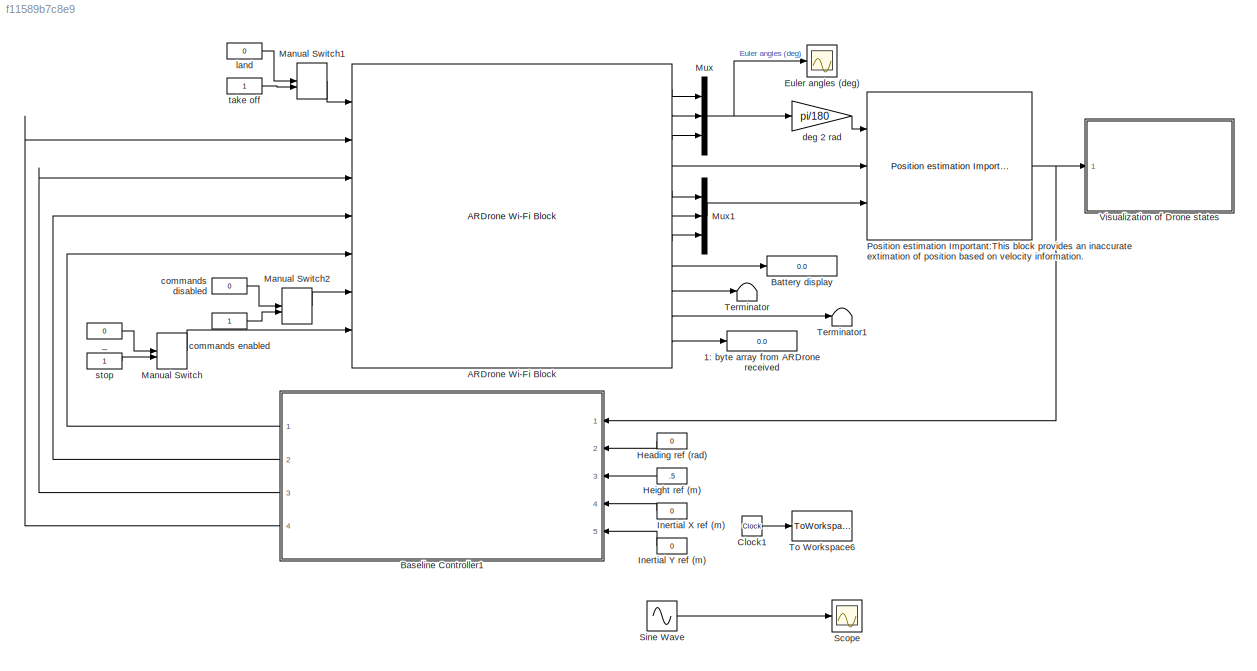
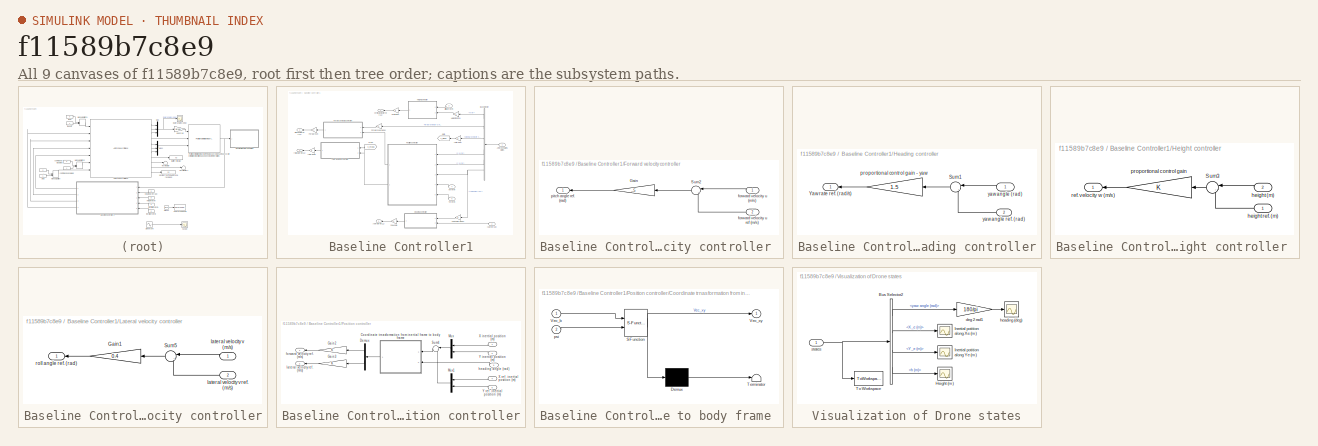
[diagram: thumbnail index - all 9 canvases of the model, root first then tree order]
MODEL slx_f11589b7c8e9
KIND model
CONFIG AbsTol = auto
CONFIG FixedStep = sampleTime
CONFIG MaxStep = auto
CONFIG MinStep = auto
CONFIG RelTol = 1e-3
CONFIG SampleTimeConstraint = Unconstrained
CONFIG Solver = ode1
CONFIG SolverMode = Auto
CONFIG SolverName = ode1
CONFIG StartTime = 0.0
CONFIG StopTime = inf
BLOCK [Display] 1: byte array from ARDrone received 
  Decimation = 1
  Ports = [1]
BLOCK [Reference] ARDrone Wi-Fi  Block  REF=ARBlocks/ARDrone Wi-Fi  Block
  Ports = [7, 11]
  SourceBlock = ARBlocks/ARDrone Wi-Fi  Block
  SourceType = SubSystem
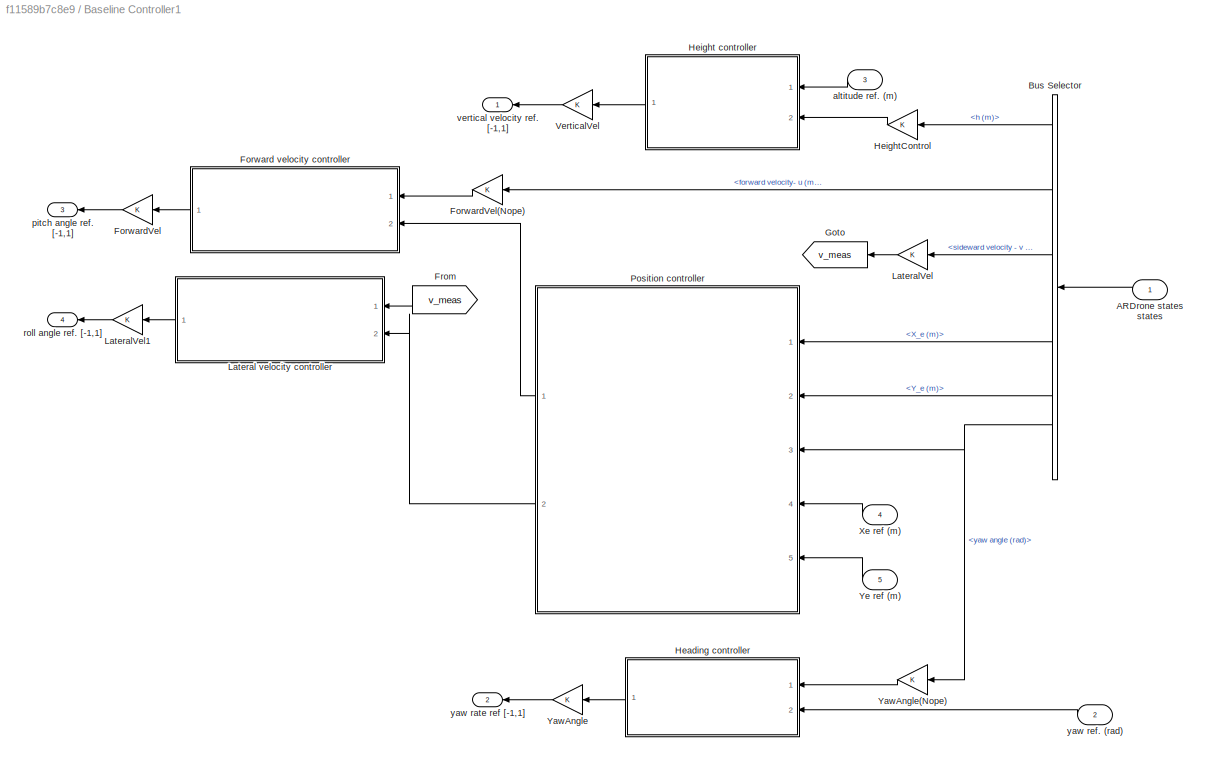
BLOCK [SubSystem] Baseline Controller1
  AncestorBlock = ARBlocks/Baseline Controller
  Ports = [5, 4]
  RequestExecContextInheritance = off
BLOCK [Inport] Baseline Controller1/ARDrone states  states 
  IconDisplay = Port number
BLOCK [BusSelector] Baseline Controller1/Bus Selector
  OutputSignals = h (m),forward velocity- u (m/s),sideward velocity - v (m/s),X_e (m),Y_e (m),yaw angle (rad)
  Ports = [1, 6]
BLOCK [SubSystem] Baseline Controller1/Forward velocity controller 
  Ports = [2, 1]
  RequestExecContextInheritance = off
BLOCK [Gain] Baseline Controller1/Forward velocity controller /Gain
  Gain = -.5
  OutDataTypeStr = Inherit: Inherit via internal rule
  ParamDataTypeStr = Inherit: Inherit via internal rule
  SaturateOnIntegerOverflow = off
BLOCK [Sum] Baseline Controller1/Forward velocity controller /Sum2
  IconShape = round
  InputSameDT = off
  Inputs = |-+
  OutDataTypeStr = Inherit: Inherit via internal rule
  Ports = [2, 1]
  SaturateOnIntegerOverflow = off
BLOCK [Inport] Baseline Controller1/Forward velocity controller /forward velocity u (m//s)
  IconDisplay = Port number
BLOCK [Inport] Baseline Controller1/Forward velocity controller /forward velocity u ref (m//s)
  IconDisplay = Port number
  Port = 2
BLOCK [Outport] Baseline Controller1/Forward velocity controller /pitch angle ref. (rad)
  IconDisplay = Port number
BLOCK [Gain] Baseline Controller1/ForwardVel
  OutDataTypeStr = Inherit: Inherit via internal rule
  ParamDataTypeStr = Inherit: Inherit via internal rule
  SaturateOnIntegerOverflow = off
BLOCK [Gain] Baseline Controller1/ForwardVel(Nope)
  OutDataTypeStr = Inherit: Inherit via internal rule
  ParamDataTypeStr = Inherit: Inherit via internal rule
  SaturateOnIntegerOverflow = off
BLOCK [From] Baseline Controller1/From
  GotoTag = v_meas
BLOCK [Goto] Baseline Controller1/Goto
  GotoTag = v_meas
BLOCK [SubSystem] Baseline Controller1/Heading controller
  Ports = [2, 1]
  RequestExecContextInheritance = off
BLOCK [Sum] Baseline Controller1/Heading controller/Sum1
  IconShape = round
  InputSameDT = off
  Inputs = |-+
  OutDataTypeStr = Inherit: Inherit via internal rule
  Ports = [2, 1]
  SaturateOnIntegerOverflow = off
BLOCK [Outport] Baseline Controller1/Heading controller/Yaw rate ref. (rad//s)
  IconDisplay = Port number
BLOCK [Gain] Baseline Controller1/Heading controller/proportional control gain - yaw
  Gain = 1.5
  OutDataTypeStr = Inherit: Inherit via internal rule
  ParamDataTypeStr = Inherit: Inherit via internal rule
  SaturateOnIntegerOverflow = off
BLOCK [Inport] Baseline Controller1/Heading controller/yaw angle (rad)
  IconDisplay = Port number
BLOCK [Inport] Baseline Controller1/Heading controller/yaw angle ref. (rad)
  IconDisplay = Port number
  Port = 2
BLOCK [SubSystem] Baseline Controller1/Height controller 
  Ports = [2, 1]
  RequestExecContextInheritance = off
BLOCK [Sum] Baseline Controller1/Height controller /Sum3
  IconShape = round
  InputSameDT = off
  Inputs = |-+
  OutDataTypeStr = Inherit: Inherit via internal rule
  Ports = [2, 1]
  SaturateOnIntegerOverflow = off
BLOCK [Inport] Baseline Controller1/Height controller /height (m)
  IconDisplay = Port number
  Port = 2
BLOCK [Inport] Baseline Controller1/Height controller /height ref. (m)
  IconDisplay = Port number
BLOCK [Gain] Baseline Controller1/Height controller /proportional control gain
  OutDataTypeStr = Inherit: Inherit via internal rule
  ParamDataTypeStr = Inherit: Inherit via internal rule
  SaturateOnIntegerOverflow = off
BLOCK [Outport] Baseline Controller1/Height controller /ref. velocity w (m//s)
  IconDisplay = Port number
BLOCK [Gain] Baseline Controller1/HeightControl
  OutDataTypeStr = Inherit: Inherit via internal rule
  ParamDataTypeStr = Inherit: Inherit via internal rule
  SaturateOnIntegerOverflow = off
BLOCK [SubSystem] Baseline Controller1/Lateral velocity controller
  Ports = [2, 1]
  RequestExecContextInheritance = off
BLOCK [Gain] Baseline Controller1/Lateral velocity controller/Gain1
  Gain = 0.4
  OutDataTypeStr = Inherit: Inherit via internal rule
  ParamDataTypeStr = Inherit: Inherit via internal rule
  SaturateOnIntegerOverflow = off
BLOCK [Sum] Baseline Controller1/Lateral velocity controller/Sum5
  IconShape = round
  InputSameDT = off
  Inputs = |-+
  OutDataTypeStr = Inherit: Inherit via internal rule
  Ports = [2, 1]
  SaturateOnIntegerOverflow = off
BLOCK [Inport] Baseline Controller1/Lateral velocity controller/lateral velocity v (m//s)
  IconDisplay = Port number
BLOCK [Inport] Baseline Controller1/Lateral velocity controller/lateral velocity v ref. (m//s)
  IconDisplay = Port number
  Port = 2
BLOCK [Outport] Baseline Controller1/Lateral velocity controller/roll angle ref. (rad)
  IconDisplay = Port number
BLOCK [Gain] Baseline Controller1/LateralVel
  OutDataTypeStr = Inherit: Inherit via internal rule
  ParamDataTypeStr = Inherit: Inherit via internal rule
  SaturateOnIntegerOverflow = off
BLOCK [Gain] Baseline Controller1/LateralVel1
  OutDataTypeStr = Inherit: Inherit via internal rule
  ParamDataTypeStr = Inherit: Inherit via internal rule
  SaturateOnIntegerOverflow = off
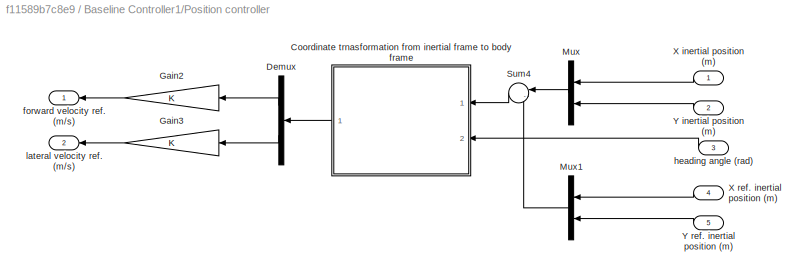
BLOCK [SubSystem] Baseline Controller1/Position controller
  Ports = [5, 2]
  RequestExecContextInheritance = off
BLOCK [SubSystem] Baseline Controller1/Position controller/Coordinate trnasformation from inertial frame to body frame 
  ErrorFcn = Stateflow.Translate.translate
  PermitHierarchicalResolution = ExplicitOnly
  Ports = [2, 1]
  RequestExecContextInheritance = off
  SFBlockType = MATLAB Function
  TreatAsAtomicUnit = on
BLOCK [Demux] Baseline Controller1/Position controller/Coordinate trnasformation from inertial frame to body frame / Demux 
  Outputs = 1
  Ports = [1, 1]
BLOCK [S-Function] Baseline Controller1/Position controller/Coordinate trnasformation from inertial frame to body frame / SFunction 
  EnableBusSupport = on
  FunctionName = sf_sfun
  PortCounts = [2 2]
  Ports = [2, 2]
  Tag = Stateflow S-Function ARDroneHover 7
BLOCK [Terminator] Baseline Controller1/Position controller/Coordinate trnasformation from inertial frame to body frame / Terminator 
BLOCK [Inport] Baseline Controller1/Position controller/Coordinate trnasformation from inertial frame to body frame /Vec_b
  IconDisplay = Port number
BLOCK [Outport] Baseline Controller1/Position controller/Coordinate trnasformation from inertial frame to body frame /Vec_xy
  IconDisplay = Port number
BLOCK [Inport] Baseline Controller1/Position controller/Coordinate trnasformation from inertial frame to body frame /psi
  IconDisplay = Port number
  Port = 2
BLOCK [Demux] Baseline Controller1/Position controller/Demux
  DisplayOption = bar
  Outputs = 2
  Ports = [1, 2]
BLOCK [Gain] Baseline Controller1/Position controller/Gain2
  OutDataTypeStr = Inherit: Inherit via internal rule
  ParamDataTypeStr = Inherit: Inherit via internal rule
  SaturateOnIntegerOverflow = off
BLOCK [Gain] Baseline Controller1/Position controller/Gain3
  OutDataTypeStr = Inherit: Inherit via internal rule
  ParamDataTypeStr = Inherit: Inherit via internal rule
  SaturateOnIntegerOverflow = off
BLOCK [Mux] Baseline Controller1/Position controller/Mux
  DisplayOption = bar
  Inputs = 2
  Ports = [2, 1]
BLOCK [Mux] Baseline Controller1/Position controller/Mux1
  DisplayOption = bar
  Inputs = 2
  Ports = [2, 1]
BLOCK [Sum] Baseline Controller1/Position controller/Sum4
  IconShape = round
  InputSameDT = off
  Inputs = |-+
  OutDataTypeStr = Inherit: Inherit via internal rule
  Ports = [2, 1]
  SaturateOnIntegerOverflow = off
BLOCK [Inport] Baseline Controller1/Position controller/X inertial position (m)
  IconDisplay = Port number
BLOCK [Inport] Baseline Controller1/Position controller/X ref. inertial position (m)
  IconDisplay = Port number
  Port = 4
BLOCK [Inport] Baseline Controller1/Position controller/Y inertial position (m)
  IconDisplay = Port number
  Port = 2
BLOCK [Inport] Baseline Controller1/Position controller/Y ref. inertial position (m)
  IconDisplay = Port number
  Port = 5
BLOCK [Outport] Baseline Controller1/Position controller/forward velocity ref. (m//s)
  IconDisplay = Port number
BLOCK [Inport] Baseline Controller1/Position controller/heading angle (rad)
  IconDisplay = Port number
  Port = 3
BLOCK [Outport] Baseline Controller1/Position controller/lateral velocity ref. (m//s)
  IconDisplay = Port number
  Port = 2
BLOCK [Gain] Baseline Controller1/VerticalVel
  OutDataTypeStr = Inherit: Inherit via internal rule
  ParamDataTypeStr = Inherit: Inherit via internal rule
  SaturateOnIntegerOverflow = off
BLOCK [Inport] Baseline Controller1/Xe ref (m)
  IconDisplay = Port number
  Port = 4
BLOCK [Gain] Baseline Controller1/YawAngle
  OutDataTypeStr = Inherit: Inherit via internal rule
  ParamDataTypeStr = Inherit: Inherit via internal rule
  SaturateOnIntegerOverflow = off
BLOCK [Gain] Baseline Controller1/YawAngle(Nope)
  OutDataTypeStr = Inherit: Inherit via internal rule
  ParamDataTypeStr = Inherit: Inherit via internal rule
  SaturateOnIntegerOverflow = off
BLOCK [Inport] Baseline Controller1/Ye ref (m)
  IconDisplay = Port number
  Port = 5
BLOCK [Inport] Baseline Controller1/altitude ref. (m)
  IconDisplay = Port number
  Port = 3
BLOCK [Outport] Baseline Controller1/pitch angle ref. [-1,1]
  IconDisplay = Port number
  Port = 3
BLOCK [Outport] Baseline Controller1/roll angle ref. [-1,1]
  IconDisplay = Port number
  Port = 4
BLOCK [Outport] Baseline Controller1/vertical velocity ref. [-1,1]
  IconDisplay = Port number
BLOCK [Outport] Baseline Controller1/yaw rate ref [-1,1]
  IconDisplay = Port number
  Port = 2
BLOCK [Inport] Baseline Controller1/yaw ref. (rad)
  IconDisplay = Port number
  Port = 2
BLOCK [Display] Battery display
  Decimation = 1
  Ports = [1]
BLOCK [Clock] Clock1
BLOCK [Scope] Euler angles (deg)
  DataFormat = StructureWithTime
  Floating = off
  MaxDataPoints = 500000
  NumInputPorts = 1
  Ports = [1]
  SampleTime = 0
  YMax = 120
  YMin = -10
BLOCK [Constant] Heading ref (rad)
  Value = 0
BLOCK [Constant] Height ref (m)
  Value = .5
BLOCK [Constant] Inertial X ref (m)
  Value = 0
BLOCK [Constant] Inertial Y ref (m)
  Value = 0
BLOCK [ManualSwitch] Manual Switch
BLOCK [ManualSwitch] Manual Switch1
BLOCK [ManualSwitch] Manual Switch2
BLOCK [Mux] Mux
  DisplayOption = bar
  Inputs = 3
  Ports = [3, 1]
BLOCK [Mux] Mux1
  DisplayOption = bar
  Inputs = 3
  Ports = [3, 1]
BLOCK [Reference] Position estimation Important:This block provides an inaccurate extimation of position based on  velocity information.   REF=ARBlocks/Position estimation
Important:This block provides an 
inaccurate extimation of position 
based on  velocity information. 
  Ports = [3, 1]
  SourceBlock = ARBlocks/Position estimation\nImportant:This block provides an \ninaccurate extimation of position \nbased on  velocity information.
  SourceType = SubSystem
BLOCK [Scope] Scope
  Floating = off
  NumInputPorts = 1
  Ports = [1]
  SaveName = ScopeData1
BLOCK [Sin] Sine Wave
  Amplitude = .5
  Frequency = .5
  Ports = [0, 1]
  SampleTime = sampleTime
BLOCK [Terminator] Terminator
BLOCK [Terminator] Terminator1
BLOCK [ToWorkspace] To Workspace6
  MaxDataPoints = inf
  Ports = [1]
  SampleTime = sampleTime
  VariableName = timeRT
BLOCK [SubSystem] Visualization of Drone states
  Ports = [1]
  RequestExecContextInheritance = off
BLOCK [BusSelector] Visualization of Drone states/Bus Selector2
  OutputSignals = yaw angle (rad),X_e (m),Y_e (m),h (m)
  Ports = [1, 4]
BLOCK [Scope] Visualization of Drone states/Height (m)
  DataFormat = StructureWithTime
  Floating = off
  MaxDataPoints = 500000
  NumInputPorts = 1
  Ports = [1]
  SampleTime = 0
  SaveName = ScopeData5
  YMax = 22.5
  YMin = -22.5
BLOCK [Scope] Visualization of Drone states/Inertial potition along Xe (m)
  DataFormat = StructureWithTime
  Floating = off
  MaxDataPoints = 500000
  NumInputPorts = 1
  Ports = [1]
  SampleTime = 0
  SaveName = ScopeData3
  YMax = 22.5
  YMin = -22.5
BLOCK [Scope] Visualization of Drone states/Inertial potition along Ye (m)
  DataFormat = StructureWithTime
  Floating = off
  MaxDataPoints = 500000
  NumInputPorts = 1
  Ports = [1]
  SampleTime = 0
  SaveName = ScopeData4
  YMax = 22.5
  YMin = -22.5
BLOCK [ToWorkspace] Visualization of Drone states/To Workspace
  MaxDataPoints = inf
  Ports = [1]
  SampleTime = -1
  SaveFormat = Structure With Time
  VariableName = states
BLOCK [Gain] Visualization of Drone states/deg 2 rad1
  Gain = 180/pi
  OutDataTypeStr = Inherit: Inherit via internal rule
  ParamDataTypeStr = Inherit: Inherit via internal rule
  SaturateOnIntegerOverflow = off
BLOCK [Scope] Visualization of Drone states/heading (deg)
  DataFormat = StructureWithTime
  Floating = off
  MaxDataPoints = 500000
  NumInputPorts = 1
  Ports = [1]
  SampleTime = 0
  SaveName = ScopeData2
  YMax = 22.5
  YMin = -22.5
BLOCK [Inport] Visualization of Drone states/states
  IconDisplay = Port number
BLOCK [Constant] _
  Value = 0
BLOCK [Constant] commands disabled
  Value = 0
BLOCK [Constant] commands enabled
BLOCK [Gain] deg 2 rad
  Gain = pi/180
  OutDataTypeStr = Inherit: Inherit via internal rule
  ParamDataTypeStr = Inherit: Inherit via internal rule
  SaturateOnIntegerOverflow = off
BLOCK [Constant] land
  Value = 0
BLOCK [Constant] stop
BLOCK [Constant] take off
LINE ARDrone Wi-Fi  Block:1 -> Mux:1
LINE ARDrone Wi-Fi  Block:10 -> Terminator1:1
LINE ARDrone Wi-Fi  Block:11 -> 1: byte array from ARDrone received :1
LINE ARDrone Wi-Fi  Block:2 -> Mux:2
LINE ARDrone Wi-Fi  Block:3 -> Mux:3
LINE ARDrone Wi-Fi  Block:4 -> Position estimation Important:This block provides an inaccurate extimation of position based on  velocity information. :2
LINE ARDrone Wi-Fi  Block:5 -> Mux1:1
LINE ARDrone Wi-Fi  Block:6 -> Mux1:2
LINE ARDrone Wi-Fi  Block:7 -> Mux1:3
LINE ARDrone Wi-Fi  Block:8 -> Battery display:1
LINE ARDrone Wi-Fi  Block:9 -> Terminator:1
LINE Baseline Controller1:1 -> ARDrone Wi-Fi  Block:5
LINE Baseline Controller1:2 -> ARDrone Wi-Fi  Block:4
LINE Baseline Controller1:3 -> ARDrone Wi-Fi  Block:3
LINE Baseline Controller1:4 -> ARDrone Wi-Fi  Block:2
LINE Clock1:1 -> To Workspace6:1
LINE Heading ref (rad):1 -> Baseline Controller1:2
LINE Height ref (m):1 -> Baseline Controller1:3
LINE Inertial X ref (m):1 -> Baseline Controller1:4
LINE Inertial Y ref (m):1 -> Baseline Controller1:5
LINE Manual Switch1:1 -> ARDrone Wi-Fi  Block:1
LINE Manual Switch2:1 -> ARDrone Wi-Fi  Block:6
LINE Manual Switch:1 -> ARDrone Wi-Fi  Block:7
LINE Mux1:1 -> Position estimation Important:This block provides an inaccurate extimation of position based on  velocity information. :3
NET Mux:1 -> Euler angles (deg):1, deg 2 rad:1
NET Position estimation Important:This block provides an inaccurate extimation of position based on  velocity information. :1 -> Baseline Controller1:1, Visualization of Drone states:1
LINE Sine Wave:1 -> Scope:1
LINE Visualization of Drone states/Bus Selector2:1 -> Visualization of Drone states/deg 2 rad1:1
LINE Visualization of Drone states/Bus Selector2:2 -> Visualization of Drone states/Inertial potition along Xe (m):1
LINE Visualization of Drone states/Bus Selector2:3 -> Visualization of Drone states/Inertial potition along Ye (m):1
LINE Visualization of Drone states/Bus Selector2:4 -> Visualization of Drone states/Height (m):1
LINE Visualization of Drone states/deg 2 rad1:1 -> Visualization of Drone states/heading (deg):1
NET Visualization of Drone states/states:1 -> Visualization of Drone states/Bus Selector2:1, Visualization of Drone states/To Workspace:1
LINE _:1 -> Manual Switch:1
LINE commands disabled:1 -> Manual Switch2:1
LINE commands enabled:1 -> Manual Switch2:2
LINE deg 2 rad:1 -> Position estimation Important:This block provides an inaccurate extimation of position based on  velocity information. :1
LINE land:1 -> Manual Switch1:1
LINE stop:1 -> Manual Switch:2
LINE take off:1 -> Manual Switch1:2
note: NET lines group one-source signal fan-out (src -> all destinations, sorted); 1:1 wires keep LINE
CHART Baseline Controller1/Position controller/Coordinate trnasformation 
from inertial frame to body frame  states=1 transitions=1
  STATE_LABEL 'eML_blk_kernel()'
  STATE_LABEL 'SCRIPT:\nfunction Vec_xy  = fcn(Vec_b , psi)\n%#codegen\nT = [cos(psi) sin(psi) ; -sin(psi) cos(psi)] ; \nVec_xy = T*Vec_b(1:2,1); \n\n'
